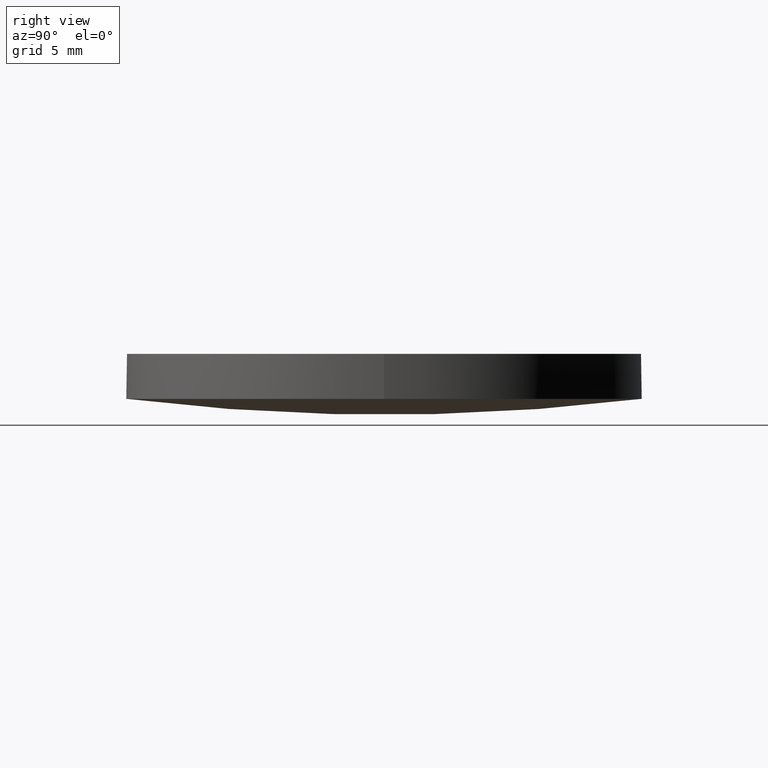
[diagram: clean part render]
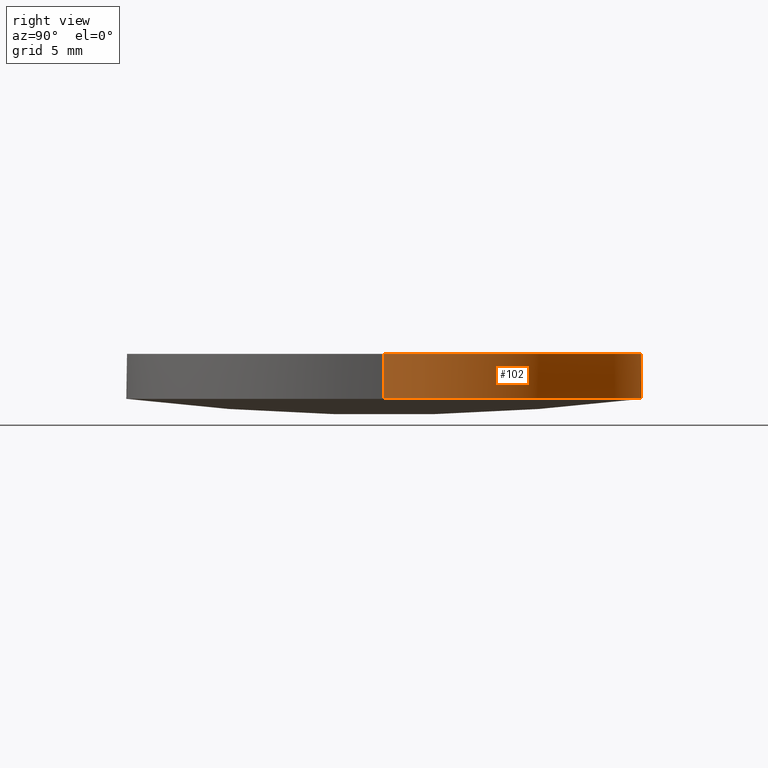
[diagram: same view with one face highlighted and labeled with its STEP entity id]
A machine part, right view. The second image highlights one B-rep face of the part: STEP entity #102.
In plain terms, the highlighted cylindrical surface (partial cylindrical patch) has radius 12.7 mm, axis along (0, 0, 1).
Its self-contained STEP definition (entity closure, byte-faithful):
#10 = AXIS2_PLACEMENT_3D ( 'NONE', #68, #56, #140 ) ;
#11 = EDGE_CURVE ( 'NONE', #185, #28, #233, .T. ) ;
#12 = LINE ( 'NONE', #175, #201 ) ;
#17 = EDGE_CURVE ( 'NONE', #97, #189, #12, .T. ) ;
#28 = VERTEX_POINT ( 'NONE', #86 ) ;
#34 = VECTOR ( 'NONE', #90, 1000.000000000000000 ) ;
#36 = ORIENTED_EDGE ( 'NONE', *, *, #11, .F. ) ;
#37 = CARTESIAN_POINT ( 'NONE',  ( -2.204210410614834700E-014, 12.69999999999999000, 0.7806140710118724100 ) ) ;
#44 = AXIS2_PLACEMENT_3D ( 'NONE', #131, #112, #167 ) ;
#50 = CARTESIAN_POINT ( 'NONE',  ( 4.996003610813200500E-016, 2.442490654175340100E-015, 0.7806140710118689700 ) ) ;
#56 = DIRECTION ( 'NONE',  ( -0.0000000000000000000, -0.0000000000000000000, -1.000000000000000000 ) ) ;
#58 = ORIENTED_EDGE ( 'NONE', *, *, #67, .T. ) ;
#64 = CYLINDRICAL_SURFACE ( 'NONE', #174, 12.69999999999999900 ) ;
#65 = CARTESIAN_POINT ( 'NONE',  ( 4.996003610813200500E-016, 2.442490654175340100E-015, 0.7806140710118689700 ) ) ;
#66 = DIRECTION ( 'NONE',  ( 0.0000000000000000000, 0.0000000000000000000, 1.000000000000000000 ) ) ;
#67 = EDGE_CURVE ( 'NONE', #189, #69, #111, .T. ) ;
#68 = CARTESIAN_POINT ( 'NONE',  ( 4.996003610813200500E-016, 2.442490654175340100E-015, 3.000000000000000000 ) ) ;
#69 = VERTEX_POINT ( 'NONE', #224 ) ;
#83 = AXIS2_PLACEMENT_3D ( 'NONE', #65, #206, #228 ) ;
#85 = EDGE_CURVE ( 'NONE', #28, #69, #200, .T. ) ;
#86 = CARTESIAN_POINT ( 'NONE',  ( 12.69999999999999900, 2.442490654175340100E-015, 0.7806140710118689700 ) ) ;
#90 = DIRECTION ( 'NONE',  ( 0.0000000000000000000, 0.0000000000000000000, 1.000000000000000000 ) ) ;
#97 = VERTEX_POINT ( 'NONE', #162 ) ;
#102 = ADVANCED_FACE ( 'NONE', ( #142 ), #64, .T. ) ;
#111 = CIRCLE ( 'NONE', #10, 12.69999999999999900 ) ;
#112 = DIRECTION ( 'NONE',  ( -0.0000000000000000000, -0.0000000000000000000, -1.000000000000000000 ) ) ;
#117 = CIRCLE ( 'NONE', #44, 12.69999999999999900 ) ;
#131 = CARTESIAN_POINT ( 'NONE',  ( 4.996003610813200500E-016, 2.442490654175340100E-015, 0.7806140710118689700 ) ) ;
#140 = DIRECTION ( 'NONE',  ( 1.000000000000000000, 0.0000000000000000000, 0.0000000000000000000 ) ) ;
#142 = FACE_OUTER_BOUND ( 'NONE', #154, .T. ) ;
#151 = ORIENTED_EDGE ( 'NONE', *, *, #85, .F. ) ;
#154 = EDGE_LOOP ( 'NONE', ( #219, #212, #58, #151, #36 ) ) ;
#162 = CARTESIAN_POINT ( 'NONE',  ( -12.69999999999999900, 3.997792089092478900E-015, 0.7806140710118689700 ) ) ;
#167 = DIRECTION ( 'NONE',  ( 1.000000000000000000, 0.0000000000000000000, 0.0000000000000000000 ) ) ;
#174 = AXIS2_PLACEMENT_3D ( 'NONE', #50, #195, #180 ) ;
#175 = CARTESIAN_POINT ( 'NONE',  ( -12.69999999999999900, 3.997792089092478900E-015, 0.7806140710118689700 ) ) ;
#176 = CARTESIAN_POINT ( 'NONE',  ( 12.69999999999999900, 2.442490654175340100E-015, 0.7806140710118689700 ) ) ;
#180 = DIRECTION ( 'NONE',  ( 1.000000000000000000, 0.0000000000000000000, 0.0000000000000000000 ) ) ;
#185 = VERTEX_POINT ( 'NONE', #37 ) ;
#189 = VERTEX_POINT ( 'NONE', #217 ) ;
#195 = DIRECTION ( 'NONE',  ( 0.0000000000000000000, 0.0000000000000000000, 1.000000000000000000 ) ) ;
#200 = LINE ( 'NONE', #176, #34 ) ;
#201 = VECTOR ( 'NONE', #66, 1000.000000000000000 ) ;
#206 = DIRECTION ( 'NONE',  ( -0.0000000000000000000, -0.0000000000000000000, -1.000000000000000000 ) ) ;
#212 = ORIENTED_EDGE ( 'NONE', *, *, #17, .T. ) ;
#217 = CARTESIAN_POINT ( 'NONE',  ( -12.69999999999999900, 3.997792089092478900E-015, 3.000000000000000000 ) ) ;
#219 = ORIENTED_EDGE ( 'NONE', *, *, #227, .F. ) ;
#224 = CARTESIAN_POINT ( 'NONE',  ( 12.69999999999999900, 2.442490654175340100E-015, 3.000000000000000000 ) ) ;
#227 = EDGE_CURVE ( 'NONE', #97, #185, #117, .T. ) ;
#228 = DIRECTION ( 'NONE',  ( 1.000000000000000000, 0.0000000000000000000, 0.0000000000000000000 ) ) ;
#233 = CIRCLE ( 'NONE', #83, 12.69999999999999900 ) ;